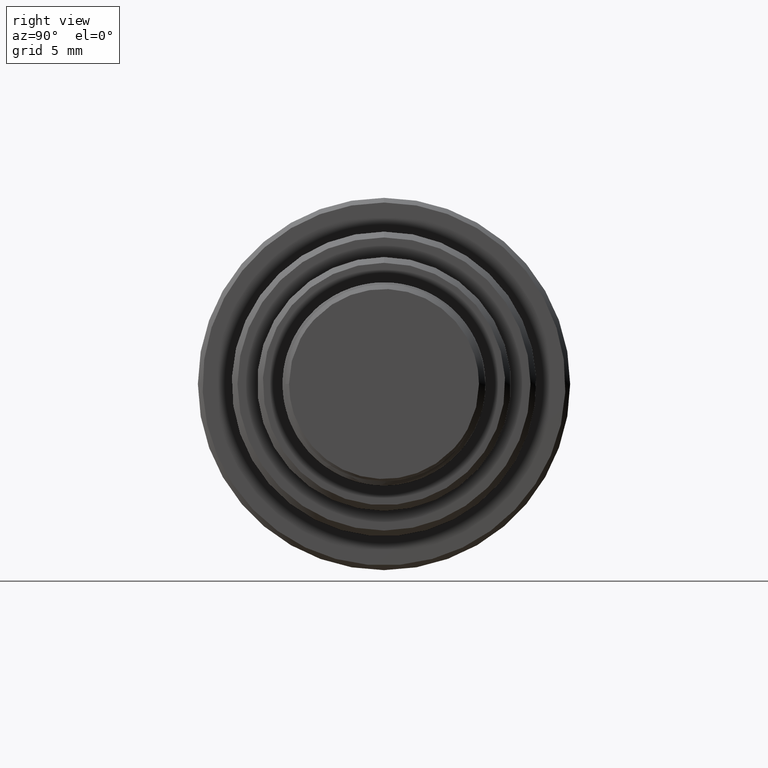
[diagram: clean part render]
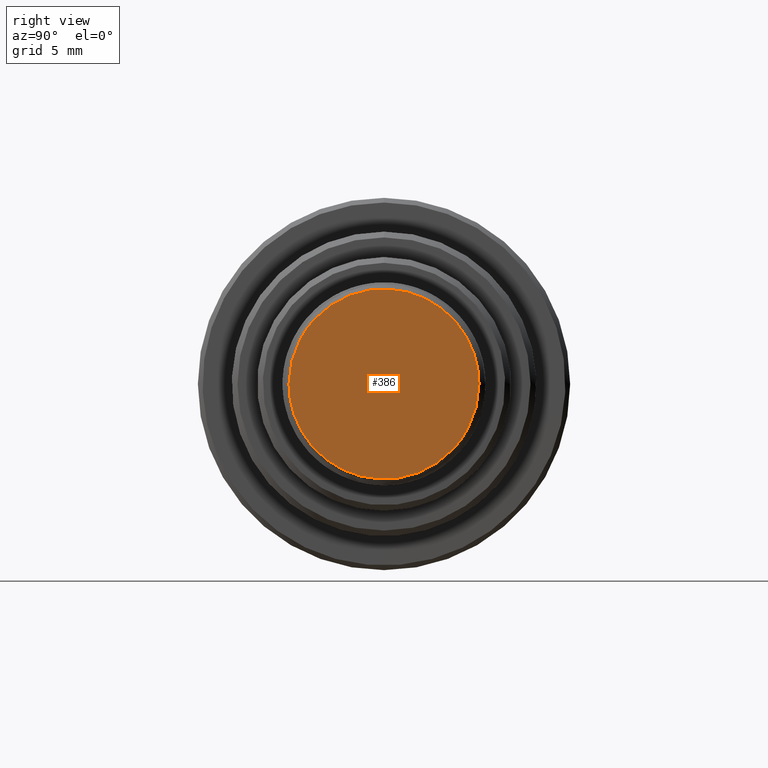
[diagram: same view with one face highlighted and labeled with its STEP entity id]
A machine part, right view. The second image highlights one B-rep face of the part: STEP entity #386.
In plain terms, the highlighted planar face has unit normal (-1, 0, 0).
Its self-contained STEP definition (entity closure, byte-faithful):
#337 = AXIS2_PLACEMENT_3D ( 'NONE', #7598, #4264, #7881 ) ;
#386 = ADVANCED_FACE ( 'NONE', ( #4568 ), #6818, .F. ) ;
#916 = CARTESIAN_POINT ( 'NONE',  ( 6.373477049945176680E-11, -3.449976156704969821, -4.489213675558931804 ) ) ;
#965 = CARTESIAN_POINT ( 'NONE',  ( 6.373477049945176680E-11, -4.489213675558930028, -3.449976156704970709 ) ) ;
#1011 = CARTESIAN_POINT ( 'NONE',  ( -9.990413444432855172E-12, 5.613854967546592967, 4.124993710146110671E-16 ) ) ;
#1257 = VERTEX_POINT ( 'NONE', #4079 ) ;
#1432 = CARTESIAN_POINT ( 'NONE',  ( 1.378275748739610229E-11, -0.7348518968525600270, 5.613854967577935895 ) ) ;
#1480 = CARTESIAN_POINT ( 'NONE',  ( 1.378275748739610552E-11, 4.489213675604383447, 3.449976156739909872 ) ) ;
#1543 = CARTESIAN_POINT ( 'NONE',  ( 6.373477049945176680E-11, -4.905310056814865760, -2.827243914693079674 ) ) ;
#1863 = ORIENTED_EDGE ( 'NONE', *, *, #4461, .F. ) ;
#2029 = CARTESIAN_POINT ( 'NONE',  ( -9.990413444432855172E-12, -5.613854967546592967, -5.499991613489931852E-16 ) ) ;
#2065 = CARTESIAN_POINT ( 'NONE',  ( 1.378275748739610714E-11, 4.905310056864534474, 2.827243914721711882 ) ) ;
#2324 = CARTESIAN_POINT ( 'NONE',  ( 6.373477049945176680E-11, 3.449976156704970709, -4.489213675558930028 ) ) ;
#2424 = CARTESIAN_POINT ( 'NONE',  ( 6.373477049945175388E-11, 2.827243914693082782, -4.905310056814864872 ) ) ;
#2766 = VERTEX_POINT ( 'NONE', #2029 ) ;
#2790 = CARTESIAN_POINT ( 'NONE',  ( -9.990413444432855172E-12, -5.613854967546592967, -5.499991613489931852E-16 ) ) ;
#2889 = CARTESIAN_POINT ( 'NONE',  ( 1.378275748739610229E-11, -5.467741349199601864, 1.469414660863361588 ) ) ;
#3048 = CARTESIAN_POINT ( 'NONE',  ( 6.373477049945174095E-11, 4.905310056814863984, -2.827243914693080118 ) ) ;
#3145 = CARTESIAN_POINT ( 'NONE',  ( -9.990413444432855172E-12, -5.613854967546592967, -5.499991613489931852E-16 ) ) ;
#3371 = B_SPLINE_CURVE_WITH_KNOTS ( 'NONE', 3,
 ( #2790, #5853, #2889, #9604, #3703, #6640, #5803, #8196, #1432, #4340, #9454, #5075, #8052, #1480, #2065, #8828, #7320, #5902 ),
 .UNSPECIFIED., .F., .F.,
 ( 4, 2, 2, 2, 2, 2, 2, 2, 4 ),
 ( 0.000000000000000000, 0.1249999999999999445, 0.2499999999999998890, 0.3749999999999998890, 0.4999999999999998890, 0.6249999999999998890, 0.7500000000000000000, 0.8749999999999998890, 1.000000000000000000 ),
 .UNSPECIFIED. ) ;
#3405 = EDGE_LOOP ( 'NONE', ( #4226, #1863 ) ) ;
#3703 = CARTESIAN_POINT ( 'NONE',  ( 1.378275748739610068E-11, -4.489213675604386999, 3.449976156739901878 ) ) ;
#4079 = CARTESIAN_POINT ( 'NONE',  ( -9.990413444432855172E-12, 5.613854967546592967, 4.124993710146110671E-16 ) ) ;
#4226 = ORIENTED_EDGE ( 'NONE', *, *, #5125, .F. ) ;
#4264 = DIRECTION ( 'NONE',  ( -1.000000000000000000, 0.000000000000000000, 0.000000000000000000 ) ) ;
#4340 = CARTESIAN_POINT ( 'NONE',  ( 1.378275748739610229E-11, 0.7348518968525573625, 5.613854967577935007 ) ) ;
#4461 = EDGE_CURVE ( 'NONE', #1257, #2766, #4708, .T. ) ;
#4568 = FACE_OUTER_BOUND ( 'NONE', #3405, .T. ) ;
#4598 = CARTESIAN_POINT ( 'NONE',  ( 6.373477049945176680E-11, -5.613854967521092476, -0.7348518968451187572 ) ) ;
#4708 = B_SPLINE_CURVE_WITH_KNOTS ( 'NONE', 3,
 ( #1011, #8986, #7627, #3048, #6703, #2324, #2424, #7481, #5284, #6897, #5381, #9135, #916, #965, #1543, #5235, #4598, #3145 ),
 .UNSPECIFIED., .F., .F.,
 ( 4, 2, 2, 2, 2, 2, 2, 2, 4 ),
 ( 0.000000000000000000, 0.1250000000000000000, 0.2500000000000000000, 0.3750000000000000000, 0.5000000000000000000, 0.6250000000000000000, 0.7500000000000000000, 0.8750000000000000000, 1.000000000000000000 ),
 .UNSPECIFIED. ) ;
#5075 = CARTESIAN_POINT ( 'NONE',  ( 1.378275748739610391E-11, 2.827243914721711437, 4.905310056864534474 ) ) ;
#5125 = EDGE_CURVE ( 'NONE', #2766, #1257, #3371, .T. ) ;
#5235 = CARTESIAN_POINT ( 'NONE',  ( 6.373477049945175388E-11, -5.467741349144239038, -1.469414660848480381 ) ) ;
#5284 = CARTESIAN_POINT ( 'NONE',  ( 6.373477049945175388E-11, 0.7348518968451185351, -5.613854967521092476 ) ) ;
#5381 = CARTESIAN_POINT ( 'NONE',  ( 6.373477049945176680E-11, -1.469414660848478604, -5.467741349144239038 ) ) ;
#5803 = CARTESIAN_POINT ( 'NONE',  ( 1.378275748739610229E-11, -2.827243914721711882, 4.905310056864532697 ) ) ;
#5853 = CARTESIAN_POINT ( 'NONE',  ( 1.378275748739610552E-11, -5.613854967577935895, 0.7348518968525580286 ) ) ;
#5902 = CARTESIAN_POINT ( 'NONE',  ( -9.990413444432855172E-12, 5.613854967546592967, 4.124993710146110671E-16 ) ) ;
#6640 = CARTESIAN_POINT ( 'NONE',  ( 1.378275748739610391E-11, -3.449976156739904098, 4.489213675604386111 ) ) ;
#6703 = CARTESIAN_POINT ( 'NONE',  ( 6.373477049945175388E-11, 4.489213675558931804, -3.449976156704969377 ) ) ;
#6818 = PLANE ( 'NONE',  #337 ) ;
#6897 = CARTESIAN_POINT ( 'NONE',  ( 6.373477049945176680E-11, -0.7348518968451167588, -5.613854967521092476 ) ) ;
#7320 = CARTESIAN_POINT ( 'NONE',  ( 1.378275748739609744E-11, 5.613854967577934119, 0.7348518968525610262 ) ) ;
#7481 = CARTESIAN_POINT ( 'NONE',  ( 6.373477049945176680E-11, 1.469414660848482601, -5.467741349144237262 ) ) ;
#7598 = CARTESIAN_POINT ( 'NONE',  ( 0.000000000000000000, 0.000000000000000000, 0.000000000000000000 ) ) ;
#7627 = CARTESIAN_POINT ( 'NONE',  ( 6.373477049945176680E-11, 5.467741349144237262, -1.469414660848481269 ) ) ;
#7881 = DIRECTION ( 'NONE',  ( 0.000000000000000000, 0.000000000000000000, 1.000000000000000000 ) ) ;
#8052 = CARTESIAN_POINT ( 'NONE',  ( 1.378275748739609906E-11, 3.449976156739895661, 4.489213675604390552 ) ) ;
#8196 = CARTESIAN_POINT ( 'NONE',  ( 1.378275748739610229E-11, -1.469414660863362920, 5.467741349199601864 ) ) ;
#8828 = CARTESIAN_POINT ( 'NONE',  ( 1.378275748739609744E-11, 5.467741349199600975, 1.469414660863363364 ) ) ;
#8986 = CARTESIAN_POINT ( 'NONE',  ( 6.373477049945176680E-11, 5.613854967521091588, -0.7348518968451176470 ) ) ;
#9135 = CARTESIAN_POINT ( 'NONE',  ( 6.373477049945176680E-11, -2.827243914693078342, -4.905310056814866648 ) ) ;
#9454 = CARTESIAN_POINT ( 'NONE',  ( 1.378275748739610229E-11, 1.469414660863360922, 5.467741349199602752 ) ) ;
#9604 = CARTESIAN_POINT ( 'NONE',  ( 1.378275748739610068E-11, -4.905310056864532697, 2.827243914721709661 ) ) ;